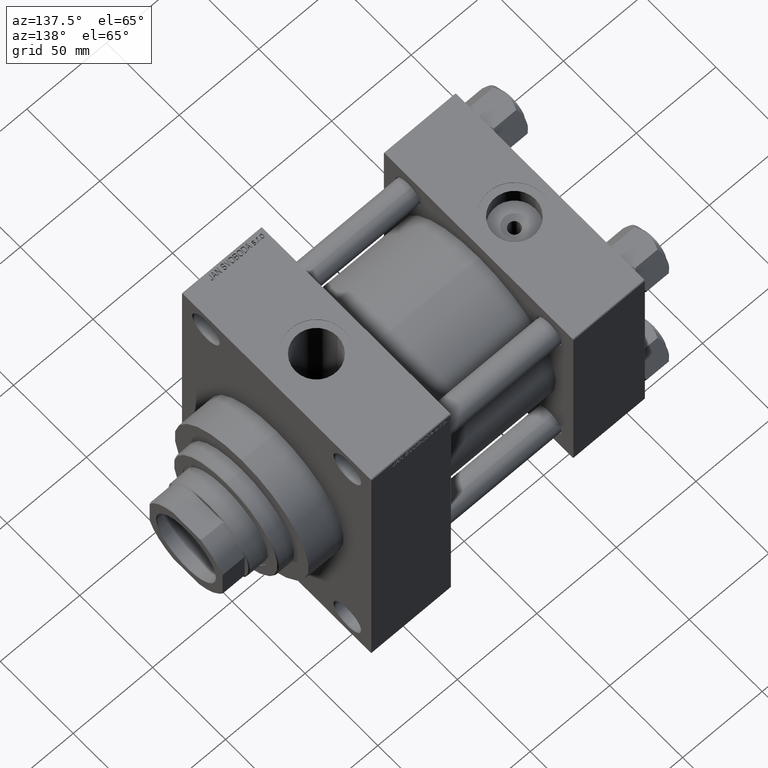
[diagram: clean part render]
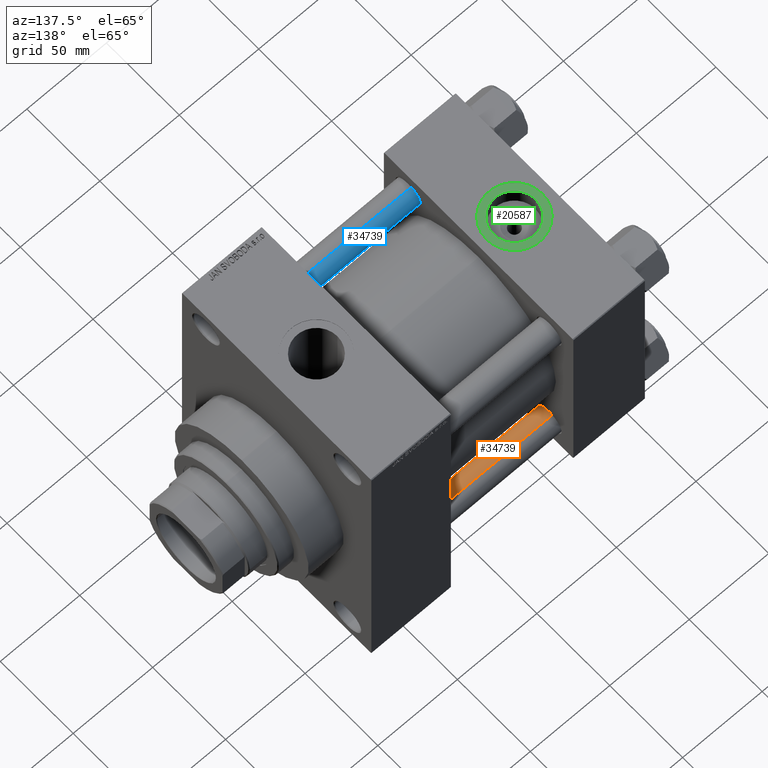
[diagram: same view with three faces highlighted in distinct colors, each labeled with its STEP entity id]
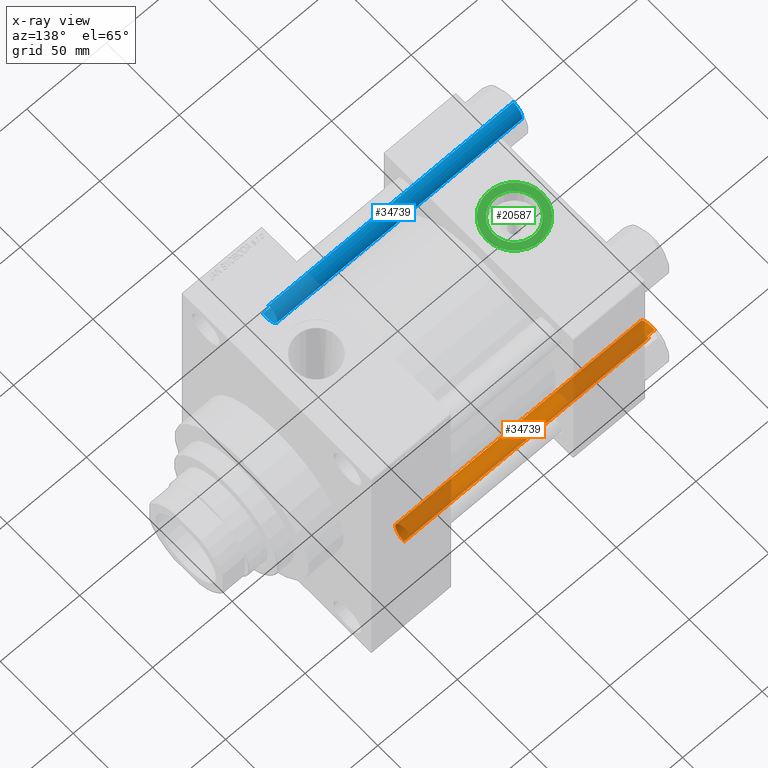
[diagram: x-ray of the same camera — body ghosted, the three highlighted faces saturated]
A machine part, auxiliary view with three faces highlighted in distinct colors.
The next image is the same camera in x-ray (body ghosted, the three faces saturated) — at least one of them is partly hidden behind the body in this view.
Their STEP definitions:

[orange] entity #34739 — the highlighted cylindrical surface (edge-blend (fillet) strip) has radius 8 mm, axis along (1, -0, 0).
#463 = CARTESIAN_POINT ( 'NONE',  ( -8.000000000000000000, 0.000000000000000000, 154.5000000000000000 ) ) ;
#1713 = LINE ( 'NONE', #45668, #22103 ) ;
#1888 = CARTESIAN_POINT ( 'NONE',  ( 8.000000000000000000, 9.797174393178825657E-16, 0.5000000000000004441 ) ) ;
#2409 = EDGE_LOOP ( 'NONE', ( #47351, #3113, #8759, #25745 ) ) ;
#3113 = ORIENTED_EDGE ( 'NONE', *, *, #9565, .T. ) ;
#3560 = CARTESIAN_POINT ( 'NONE',  ( 0.000000000000000000, 0.000000000000000000, 0.5000000000000004441 ) ) ;
#4690 = CIRCLE ( 'NONE', #37817, 8.000000000000000000 ) ;
#6061 = FACE_OUTER_BOUND ( 'NONE', #2409, .T. ) ;
#6178 = AXIS2_PLACEMENT_3D ( 'NONE', #20787, #47331, #39602 ) ;
#6329 = VERTEX_POINT ( 'NONE', #463 ) ;
#6376 = VERTEX_POINT ( 'NONE', #1888 ) ;
#7319 = EDGE_CURVE ( 'NONE', #28063, #6376, #4690, .T. ) ;
#8759 = ORIENTED_EDGE ( 'NONE', *, *, #24894, .T. ) ;
#9565 = EDGE_CURVE ( 'NONE', #34458, #6329, #31753, .T. ) ;
#9911 = DIRECTION ( 'NONE',  ( 0.000000000000000000, 0.000000000000000000, -1.000000000000000000 ) ) ;
#13934 = VECTOR ( 'NONE', #27521, 1000.000000000000000 ) ;
#20073 = DIRECTION ( 'NONE',  ( 1.000000000000000000, 0.000000000000000000, 0.000000000000000000 ) ) ;
#20268 = CARTESIAN_POINT ( 'NONE',  ( 8.000000000000000000, 9.797174393178825657E-16, 155.0000000000000000 ) ) ;
#20787 = CARTESIAN_POINT ( 'NONE',  ( 0.000000000000000000, 0.000000000000000000, 155.0000000000000000 ) ) ;
#21918 = DIRECTION ( 'NONE',  ( -0.000000000000000000, -0.000000000000000000, 1.000000000000000000 ) ) ;
#22103 = VECTOR ( 'NONE', #23940, 1000.000000000000000 ) ;
#23940 = DIRECTION ( 'NONE',  ( -0.000000000000000000, -0.000000000000000000, -1.000000000000000000 ) ) ;
#24894 = EDGE_CURVE ( 'NONE', #6329, #28063, #1713, .T. ) ;
#25745 = ORIENTED_EDGE ( 'NONE', *, *, #7319, .T. ) ;
#26019 = DIRECTION ( 'NONE',  ( 1.000000000000000000, 0.000000000000000000, 0.000000000000000000 ) ) ;
#27521 = DIRECTION ( 'NONE',  ( -0.000000000000000000, -0.000000000000000000, -1.000000000000000000 ) ) ;
#28063 = VERTEX_POINT ( 'NONE', #38440 ) ;
#28810 = CARTESIAN_POINT ( 'NONE',  ( 8.000000000000000000, 9.797174393178825657E-16, 154.5000000000000000 ) ) ;
#30203 = AXIS2_PLACEMENT_3D ( 'NONE', #46139, #9911, #20073 ) ;
#31753 = CIRCLE ( 'NONE', #30203, 8.000000000000000000 ) ;
#32348 = CYLINDRICAL_SURFACE ( 'NONE', #6178, 8.000000000000000000 ) ;
#34458 = VERTEX_POINT ( 'NONE', #28810 ) ;
#34739 = ADVANCED_FACE ( 'NONE', ( #6061 ), #32348, .T. ) ;
#37694 = EDGE_CURVE ( 'NONE', #34458, #6376, #41747, .T. ) ;
#37817 = AXIS2_PLACEMENT_3D ( 'NONE', #3560, #21918, #26019 ) ;
#38440 = CARTESIAN_POINT ( 'NONE',  ( -8.000000000000000000, 0.000000000000000000, 0.5000000000000004441 ) ) ;
#39602 = DIRECTION ( 'NONE',  ( -1.000000000000000000, 0.000000000000000000, 0.000000000000000000 ) ) ;
#41747 = LINE ( 'NONE', #20268, #13934 ) ;
#45668 = CARTESIAN_POINT ( 'NONE',  ( -8.000000000000000000, 0.000000000000000000, 155.0000000000000000 ) ) ;
#46139 = CARTESIAN_POINT ( 'NONE',  ( 0.000000000000000000, 0.000000000000000000, 154.5000000000000000 ) ) ;
#47331 = DIRECTION ( 'NONE',  ( -0.000000000000000000, -0.000000000000000000, -1.000000000000000000 ) ) ;
#47351 = ORIENTED_EDGE ( 'NONE', *, *, #37694, .F. ) ;

[blue] entity #34739 — the highlighted cylindrical surface (edge-blend (fillet) strip) has radius 8 mm, axis along (1, 0, 0).
#463 = CARTESIAN_POINT ( 'NONE',  ( -8.000000000000000000, 0.000000000000000000, 154.5000000000000000 ) ) ;
#1713 = LINE ( 'NONE', #45668, #22103 ) ;
#1888 = CARTESIAN_POINT ( 'NONE',  ( 8.000000000000000000, 9.797174393178825657E-16, 0.5000000000000004441 ) ) ;
#2409 = EDGE_LOOP ( 'NONE', ( #47351, #3113, #8759, #25745 ) ) ;
#3113 = ORIENTED_EDGE ( 'NONE', *, *, #9565, .T. ) ;
#3560 = CARTESIAN_POINT ( 'NONE',  ( 0.000000000000000000, 0.000000000000000000, 0.5000000000000004441 ) ) ;
#4690 = CIRCLE ( 'NONE', #37817, 8.000000000000000000 ) ;
#6061 = FACE_OUTER_BOUND ( 'NONE', #2409, .T. ) ;
#6178 = AXIS2_PLACEMENT_3D ( 'NONE', #20787, #47331, #39602 ) ;
#6329 = VERTEX_POINT ( 'NONE', #463 ) ;
#6376 = VERTEX_POINT ( 'NONE', #1888 ) ;
#7319 = EDGE_CURVE ( 'NONE', #28063, #6376, #4690, .T. ) ;
#8759 = ORIENTED_EDGE ( 'NONE', *, *, #24894, .T. ) ;
#9565 = EDGE_CURVE ( 'NONE', #34458, #6329, #31753, .T. ) ;
#9911 = DIRECTION ( 'NONE',  ( 0.000000000000000000, 0.000000000000000000, -1.000000000000000000 ) ) ;
#13934 = VECTOR ( 'NONE', #27521, 1000.000000000000000 ) ;
#20073 = DIRECTION ( 'NONE',  ( 1.000000000000000000, 0.000000000000000000, 0.000000000000000000 ) ) ;
#20268 = CARTESIAN_POINT ( 'NONE',  ( 8.000000000000000000, 9.797174393178825657E-16, 155.0000000000000000 ) ) ;
#20787 = CARTESIAN_POINT ( 'NONE',  ( 0.000000000000000000, 0.000000000000000000, 155.0000000000000000 ) ) ;
#21918 = DIRECTION ( 'NONE',  ( -0.000000000000000000, -0.000000000000000000, 1.000000000000000000 ) ) ;
#22103 = VECTOR ( 'NONE', #23940, 1000.000000000000000 ) ;
#23940 = DIRECTION ( 'NONE',  ( -0.000000000000000000, -0.000000000000000000, -1.000000000000000000 ) ) ;
#24894 = EDGE_CURVE ( 'NONE', #6329, #28063, #1713, .T. ) ;
#25745 = ORIENTED_EDGE ( 'NONE', *, *, #7319, .T. ) ;
#26019 = DIRECTION ( 'NONE',  ( 1.000000000000000000, 0.000000000000000000, 0.000000000000000000 ) ) ;
#27521 = DIRECTION ( 'NONE',  ( -0.000000000000000000, -0.000000000000000000, -1.000000000000000000 ) ) ;
#28063 = VERTEX_POINT ( 'NONE', #38440 ) ;
#28810 = CARTESIAN_POINT ( 'NONE',  ( 8.000000000000000000, 9.797174393178825657E-16, 154.5000000000000000 ) ) ;
#30203 = AXIS2_PLACEMENT_3D ( 'NONE', #46139, #9911, #20073 ) ;
#31753 = CIRCLE ( 'NONE', #30203, 8.000000000000000000 ) ;
#32348 = CYLINDRICAL_SURFACE ( 'NONE', #6178, 8.000000000000000000 ) ;
#34458 = VERTEX_POINT ( 'NONE', #28810 ) ;
#34739 = ADVANCED_FACE ( 'NONE', ( #6061 ), #32348, .T. ) ;
#37694 = EDGE_CURVE ( 'NONE', #34458, #6376, #41747, .T. ) ;
#37817 = AXIS2_PLACEMENT_3D ( 'NONE', #3560, #21918, #26019 ) ;
#38440 = CARTESIAN_POINT ( 'NONE',  ( -8.000000000000000000, 0.000000000000000000, 0.5000000000000004441 ) ) ;
#39602 = DIRECTION ( 'NONE',  ( -1.000000000000000000, 0.000000000000000000, 0.000000000000000000 ) ) ;
#41747 = LINE ( 'NONE', #20268, #13934 ) ;
#45668 = CARTESIAN_POINT ( 'NONE',  ( -8.000000000000000000, 0.000000000000000000, 155.0000000000000000 ) ) ;
#46139 = CARTESIAN_POINT ( 'NONE',  ( 0.000000000000000000, 0.000000000000000000, 154.5000000000000000 ) ) ;
#47331 = DIRECTION ( 'NONE',  ( -0.000000000000000000, -0.000000000000000000, -1.000000000000000000 ) ) ;
#47351 = ORIENTED_EDGE ( 'NONE', *, *, #37694, .F. ) ;

[green] entity #20587 — the highlighted planar face has unit normal (0, 0, 1).
#249 = DIRECTION ( 'NONE',  ( 0.000000000000000000, 0.000000000000000000, 1.000000000000000000 ) ) ;
#826 = CIRCLE ( 'NONE', #9317, 13.22000000000000242 ) ;
#1184 = CARTESIAN_POINT ( 'NONE',  ( 22.50000000000000000, -8.673617379884035472E-15, 64.79999999999999716 ) ) ;
#1929 = EDGE_LOOP ( 'NONE', ( #44016, #12264 ) ) ;
#4571 = FACE_OUTER_BOUND ( 'NONE', #1929, .T. ) ;
#5027 = VERTEX_POINT ( 'NONE', #20069 ) ;
#5193 = DIRECTION ( 'NONE',  ( 1.000000000000000000, 0.000000000000000000, 0.000000000000000000 ) ) ;
#5651 = CARTESIAN_POINT ( 'NONE',  ( 40.00000000000000000, -8.673617379884035472E-15, 64.79999999999999716 ) ) ;
#6465 = EDGE_CURVE ( 'NONE', #28999, #10193, #28598, .T. ) ;
#9317 = AXIS2_PLACEMENT_3D ( 'NONE', #37192, #249, #44668 ) ;
#9596 = EDGE_CURVE ( 'NONE', #35234, #5027, #26359, .T. ) ;
#10193 = VERTEX_POINT ( 'NONE', #5651 ) ;
#10727 = EDGE_LOOP ( 'NONE', ( #11011, #16680 ) ) ;
#10988 = CARTESIAN_POINT ( 'NONE',  ( 22.50000000000000000, -8.673617379884035472E-15, 64.79999999999999716 ) ) ;
#11011 = ORIENTED_EDGE ( 'NONE', *, *, #37590, .F. ) ;
#12264 = ORIENTED_EDGE ( 'NONE', *, *, #6465, .T. ) ;
#12295 = DIRECTION ( 'NONE',  ( 1.000000000000000000, 0.000000000000000000, -0.000000000000000000 ) ) ;
#15340 = AXIS2_PLACEMENT_3D ( 'NONE', #19680, #44389, #5193 ) ;
#16568 = AXIS2_PLACEMENT_3D ( 'NONE', #1184, #30639, #12295 ) ;
#16680 = ORIENTED_EDGE ( 'NONE', *, *, #9596, .F. ) ;
#17400 = DIRECTION ( 'NONE',  ( 0.000000000000000000, 0.000000000000000000, 1.000000000000000000 ) ) ;
#17803 = AXIS2_PLACEMENT_3D ( 'NONE', #10988, #25723, #39713 ) ;
#19680 = CARTESIAN_POINT ( 'NONE',  ( 22.50000000000000000, -8.673617379884035472E-15, 64.79999999999999716 ) ) ;
#20069 = CARTESIAN_POINT ( 'NONE',  ( 35.71999999999999886, -8.673617379884035472E-15, 64.79999999999999716 ) ) ;
#20587 = ADVANCED_FACE ( 'NONE', ( #34254, #4571 ), #41994, .T. ) ;
#24646 = CARTESIAN_POINT ( 'NONE',  ( 22.50000000000000000, -8.673617379884035472E-15, 64.79999999999999716 ) ) ;
#24713 = CARTESIAN_POINT ( 'NONE',  ( 9.279999999999994031, -7.054634311411234321E-15, 64.79999999999999716 ) ) ;
#25723 = DIRECTION ( 'NONE',  ( 0.000000000000000000, 0.000000000000000000, 1.000000000000000000 ) ) ;
#26359 = CIRCLE ( 'NONE', #37134, 13.22000000000000242 ) ;
#28598 = CIRCLE ( 'NONE', #17803, 17.50000000000000000 ) ;
#28999 = VERTEX_POINT ( 'NONE', #45382 ) ;
#30639 = DIRECTION ( 'NONE',  ( 0.000000000000000000, 0.000000000000000000, 1.000000000000000000 ) ) ;
#30872 = EDGE_CURVE ( 'NONE', #10193, #28999, #36146, .T. ) ;
#34254 = FACE_BOUND ( 'NONE', #10727, .T. ) ;
#35234 = VERTEX_POINT ( 'NONE', #24713 ) ;
#36146 = CIRCLE ( 'NONE', #15340, 17.50000000000000000 ) ;
#37134 = AXIS2_PLACEMENT_3D ( 'NONE', #24646, #17400, #45669 ) ;
#37192 = CARTESIAN_POINT ( 'NONE',  ( 22.50000000000000000, -8.673617379884035472E-15, 64.79999999999999716 ) ) ;
#37590 = EDGE_CURVE ( 'NONE', #5027, #35234, #826, .T. ) ;
#39713 = DIRECTION ( 'NONE',  ( 1.000000000000000000, 0.000000000000000000, 0.000000000000000000 ) ) ;
#41994 = PLANE ( 'NONE',  #16568 ) ;
#44016 = ORIENTED_EDGE ( 'NONE', *, *, #30872, .T. ) ;
#44389 = DIRECTION ( 'NONE',  ( 0.000000000000000000, 0.000000000000000000, 1.000000000000000000 ) ) ;
#44668 = DIRECTION ( 'NONE',  ( 1.000000000000000000, 0.000000000000000000, 0.000000000000000000 ) ) ;
#45382 = CARTESIAN_POINT ( 'NONE',  ( 4.999999999999997335, -6.530485481376167224E-15, 64.79999999999999716 ) ) ;
#45669 = DIRECTION ( 'NONE',  ( 1.000000000000000000, 0.000000000000000000, 0.000000000000000000 ) ) ;